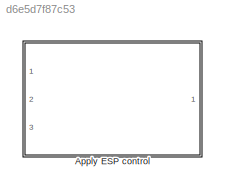
MODEL slx_d6e5d7f87c53
KIND model
CONFIG AbsTol = auto
CONFIG EnableMultiTasking = off
CONFIG FixedStep = auto
CONFIG MaxStep = auto
CONFIG MinStep = auto
CONFIG RelTol = 1e-3
CONFIG SampleTimeConstraint = Unconstrained
CONFIG Solver = VariableStepAuto
CONFIG SolverName = VariableStepAuto
CONFIG StartTime = 0.0
CONFIG StopTime = 10.0
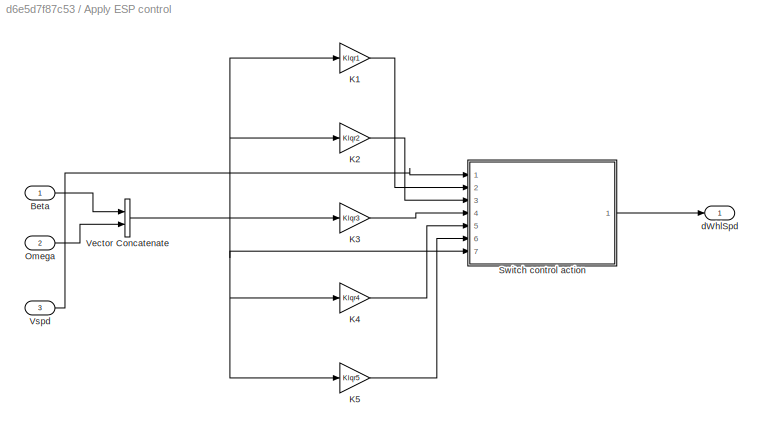
BLOCK [SubSystem] Apply ESP control
  Ports = [3, 1]
  RequestExecContextInheritance = off
BLOCK [Inport] Apply ESP control/Beta
  IconDisplay = Port number
BLOCK [Gain] Apply ESP control/K1
  Gain = Klqr1
  Multiplication = Matrix(K*u)
  OutDataTypeStr = Inherit: Inherit via internal rule
  ParamDataTypeStr = Inherit: Inherit via internal rule
  SaturateOnIntegerOverflow = off
BLOCK [Gain] Apply ESP control/K2
  Gain = Klqr2
  Multiplication = Matrix(K*u)
  OutDataTypeStr = Inherit: Inherit via internal rule
  ParamDataTypeStr = Inherit: Inherit via internal rule
  SaturateOnIntegerOverflow = off
BLOCK [Gain] Apply ESP control/K3
  Gain = Klqr3
  Multiplication = Matrix(K*u)
  OutDataTypeStr = Inherit: Inherit via internal rule
  ParamDataTypeStr = Inherit: Inherit via internal rule
  SaturateOnIntegerOverflow = off
BLOCK [Gain] Apply ESP control/K4
  Gain = Klqr4
  Multiplication = Matrix(K*u)
  OutDataTypeStr = Inherit: Inherit via internal rule
  ParamDataTypeStr = Inherit: Inherit via internal rule
  SaturateOnIntegerOverflow = off
BLOCK [Gain] Apply ESP control/K5
  Gain = Klqr5
  Multiplication = Matrix(K*u)
  OutDataTypeStr = Inherit: Inherit via internal rule
  ParamDataTypeStr = Inherit: Inherit via internal rule
  SaturateOnIntegerOverflow = off
BLOCK [Inport] Apply ESP control/Omega
  IconDisplay = Port number
  Port = 2
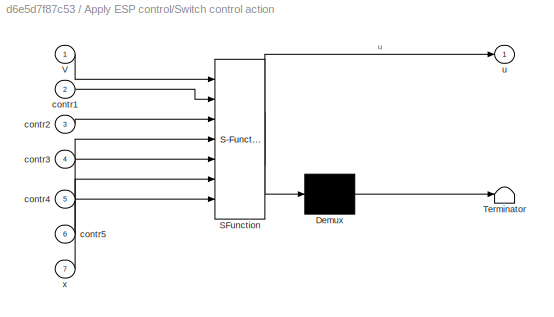
BLOCK [SubSystem] Apply ESP control/Switch control action
  ErrorFcn = Stateflow.Translate.translate
  PermitHierarchicalResolution = ExplicitOnly
  Ports = [7, 1]
  RequestExecContextInheritance = off
  SFBlockType = MATLAB Function
  TreatAsAtomicUnit = on
BLOCK [Demux] Apply ESP control/Switch control action/ Demux 
  Outputs = 1
  Ports = [1, 1]
BLOCK [S-Function] Apply ESP control/Switch control action/ SFunction 
  EnableBusSupport = on
  FunctionName = sf_sfun
  PortCounts = [7 2]
  Ports = [7, 2]
  SFcnIsStateOwnerBlock = off
  SFunctionDeploymentMode = off
  Tag = Stateflow S-Function 2
BLOCK [Terminator] Apply ESP control/Switch control action/ Terminator 
BLOCK [Inport] Apply ESP control/Switch control action/V
  IconDisplay = Port number
BLOCK [Inport] Apply ESP control/Switch control action/contr1
  IconDisplay = Port number
  Port = 2
BLOCK [Inport] Apply ESP control/Switch control action/contr2
  IconDisplay = Port number
  Port = 3
BLOCK [Inport] Apply ESP control/Switch control action/contr3
  IconDisplay = Port number
  Port = 4
BLOCK [Inport] Apply ESP control/Switch control action/contr4
  IconDisplay = Port number
  Port = 5
BLOCK [Inport] Apply ESP control/Switch control action/contr5
  IconDisplay = Port number
  Port = 6
BLOCK [Outport] Apply ESP control/Switch control action/u
  IconDisplay = Port number
BLOCK [Inport] Apply ESP control/Switch control action/x
  IconDisplay = Port number
  Port = 7
BLOCK [Concatenate] Apply ESP control/Vector Concatenate
  Ports = [2, 1]
BLOCK [Inport] Apply ESP control/Vspd
  IconDisplay = Port number
  Port = 3
BLOCK [Outport] Apply ESP control/dWhlSpd
  IconDisplay = Port number
LINE Apply ESP control/Beta:1 -> Apply ESP control/Vector Concatenate:1
LINE Apply ESP control/K1:1 -> Apply ESP control/Switch control action:2
LINE Apply ESP control/K2:1 -> Apply ESP control/Switch control action:3
LINE Apply ESP control/K3:1 -> Apply ESP control/Switch control action:4
LINE Apply ESP control/K4:1 -> Apply ESP control/Switch control action:5
LINE Apply ESP control/K5:1 -> Apply ESP control/Switch control action:6
LINE Apply ESP control/Omega:1 -> Apply ESP control/Vector Concatenate:2
LINE Apply ESP control/Switch control action:1 -> Apply ESP control/dWhlSpd:1
NET Apply ESP control/Vector Concatenate:1 -> Apply ESP control/K1:1, Apply ESP control/K2:1, Apply ESP control/K3:1, Apply ESP control/K4:1, Apply ESP control/K5:1, Apply ESP control/Switch control action:7
LINE Apply ESP control/Vspd:1 -> Apply ESP control/Switch control action:1
note: NET lines group one-source signal fan-out (src -> all destinations, sorted); 1:1 wires keep LINE
CHART Apply ESP control/Switch control action states=1 transitions=1
  STATE_LABEL 'eML_blk_kernel()'
  STATE_LABEL 'SCRIPT:\nfunction u = switch_control(V, contr1, contr2, contr3, contr4, contr5, x)\n\n%Velocities that will define our 5 possible scenarios\nV1 = 60/3.6;\nV2 = 80/3.6;\nV3 = 100/3.6;\nV4 = 120/3.6;\n\nbeta = x(1);\nbeta1 = beta - floor((beta+pi)/(2*pi))*(2*pi); %unwrapping of beta: brings beta back in range [-pi;pi]\nw = x(2);\n\n%Initialization of control action u\nu = [0; 0; 0; 0];\n\nif (abs(beta1) > pi/2) || ...<+469ch>'
